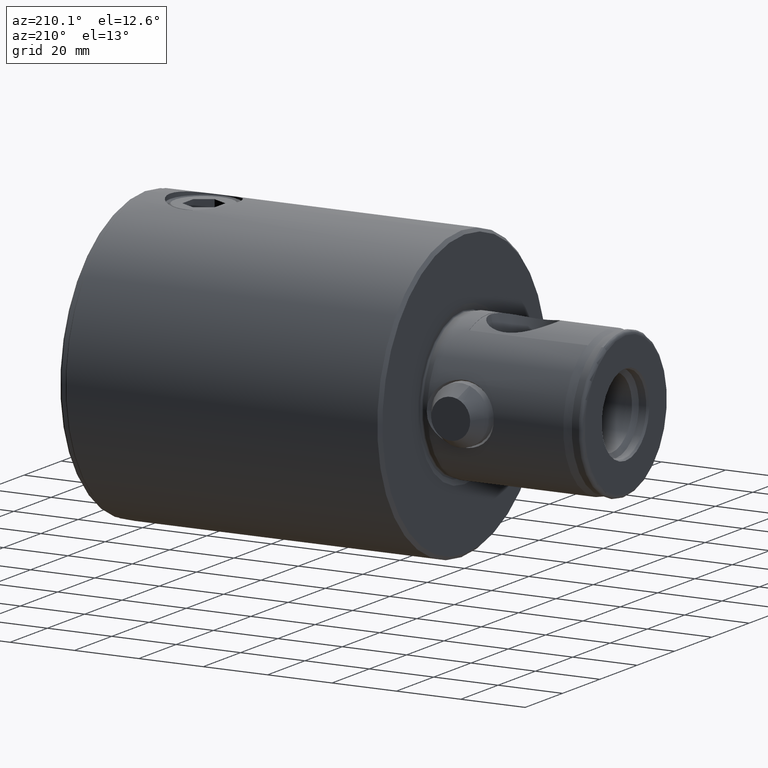
[diagram: clean part render]
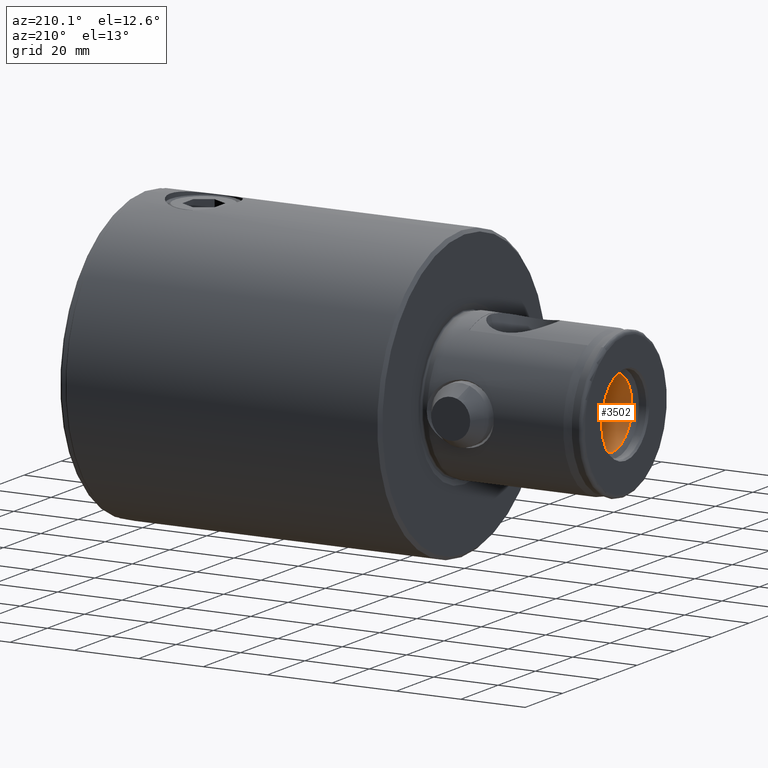
[diagram: same view with one face highlighted and labeled with its STEP entity id]
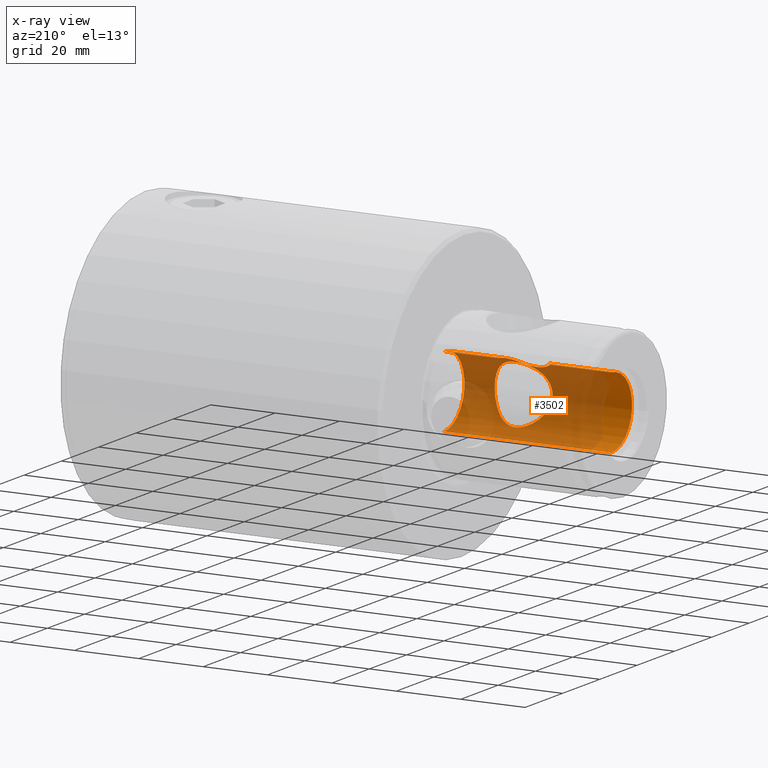
[diagram: x-ray of the same camera — body ghosted, the highlighted face saturated]
A machine part, auxiliary view. The second image highlights one B-rep face of the part: STEP entity #3502.
The next image is the same camera in x-ray: the body ghosted, the highlighted face saturated — about 80% of this face is hidden behind the body in this view.
In plain terms, the highlighted cylindrical surface (partial cylindrical patch) has radius 11 mm, axis along (-1, 0, 0).
Its self-contained STEP definition (entity closure, byte-faithful):
#48 = CARTESIAN_POINT ( 'NONE',  ( 10.99999999999997300, 0.0000000000000000000, 93.61607733787893400 ) ) ;
#51 = CARTESIAN_POINT ( 'NONE',  ( 8.046813739930089000, -7.499919242694987000, 117.9429805126656000 ) ) ;
#55 = CARTESIAN_POINT ( 'NONE',  ( -8.487188553112508400, -6.999123736676005500, 108.9911272112070000 ) ) ;
#78 = DIRECTION ( 'NONE',  ( -0.0000000000000000000, -0.0000000000000000000, -1.000000000000000000 ) ) ;
#99 = CARTESIAN_POINT ( 'NONE',  ( 8.095134576916839500, -7.448992107332300900, 119.2095732200110400 ) ) ;
#104 = CARTESIAN_POINT ( 'NONE',  ( -8.916475211212173200, -6.442023820279271900, 110.7378838012101500 ) ) ;
#136 = CARTESIAN_POINT ( 'NONE',  ( 10.99999999999997300, 2.258350999466712600E-020, 125.7000000000000000 ) ) ;
#150 = CARTESIAN_POINT ( 'NONE',  ( 9.252691689709170200, -5.957381081652567200, 122.7807830166999100 ) ) ;
#217 = CARTESIAN_POINT ( 'NONE',  ( 0.0000000000000000000, 0.0000000000000000000, 145.6500000000000100 ) ) ;
#245 = VECTOR ( 'NONE', #1565, 1000.000000000000000 ) ;
#255 = CARTESIAN_POINT ( 'NONE',  ( 5.600162497706457500, -9.482661698780781000, 104.9313478319819800 ) ) ;
#272 = CARTESIAN_POINT ( 'NONE',  ( 8.390064752318929600, -7.115900869844685900, 108.7305837311860600 ) ) ;
#288 = CARTESIAN_POINT ( 'NONE',  ( 4.648932863107681600, -9.973282493529914900, 104.2880276437495400 ) ) ;
#304 = FACE_OUTER_BOUND ( 'NONE', #1704, .T. ) ;
#362 = LINE ( 'NONE', #4123, #3632 ) ;
#377 = CARTESIAN_POINT ( 'NONE',  ( -1.558797290518071600, -10.89328043425226200, 103.1306744137476600 ) ) ;
#401 = CARTESIAN_POINT ( 'NONE',  ( -10.99999999999997300, 1.347111479062085400E-015, 93.61607733787893400 ) ) ;
#429 = CARTESIAN_POINT ( 'NONE',  ( 10.72543512827880900, -2.487139238067599800, 111.1072986310211700 ) ) ;
#434 = CARTESIAN_POINT ( 'NONE',  ( -5.371158709359508300, -9.603156210133498400, 119.2271561218936700 ) ) ;
#450 = CARTESIAN_POINT ( 'NONE',  ( 8.487097592457162800, -6.998853643785933400, 115.4935722603384800 ) ) ;
#452 = CARTESIAN_POINT ( 'NONE',  ( -0.6325626198590331700, -10.99999999999997300, 120.9999999999999700 ) ) ;
#464 = AXIS2_PLACEMENT_3D ( 'NONE', #2442, #78, #2826 ) ;
#472 = CARTESIAN_POINT ( 'NONE',  ( -7.634919328069126500, -7.921625567083414600, 116.7733397010939000 ) ) ;
#488 = CARTESIAN_POINT ( 'NONE',  ( 10.82769602149506500, -2.002008442529433100, 110.9546853991531100 ) ) ;
#506 = CARTESIAN_POINT ( 'NONE',  ( -8.170996234290360100, -7.366412863604977300, 115.7838543894761300 ) ) ;
#590 = CARTESIAN_POINT ( 'NONE',  ( 10.72579469002550700, -2.486571740869743000, 125.2932840041261200 ) ) ;
#610 = VERTEX_POINT ( 'NONE', #1419 ) ;
#643 = CARTESIAN_POINT ( 'NONE',  ( 8.502656285363293900, -6.987145633330563000, 115.0050017780012700 ) ) ;
#658 = CARTESIAN_POINT ( 'NONE',  ( 2.158354470784404500, -10.79052154116577700, 120.7428104035745500 ) ) ;
#677 = CARTESIAN_POINT ( 'NONE',  ( 8.745298510793350700, -6.673118699646433800, 109.8526819287728800 ) ) ;
#691 = CARTESIAN_POINT ( 'NONE',  ( 3.866538306001968000, -10.30212422578814300, 103.8674099895016500 ) ) ;
#709 = CARTESIAN_POINT ( 'NONE',  ( 6.815808516998424200, -8.647320082043156800, 117.9038684627307300 ) ) ;
#714 = ORIENTED_EDGE ( 'NONE', *, *, #1489, .F. ) ;
#737 = VERTEX_POINT ( 'NONE', #1722 ) ;
#753 = CARTESIAN_POINT ( 'NONE',  ( -6.035175446447046200, -9.209045926655177200, 105.3003379539045000 ) ) ;
#769 = CARTESIAN_POINT ( 'NONE',  ( -4.145580248755394800, -10.20538678765516100, 103.9893175521795700 ) ) ;
#784 = CARTESIAN_POINT ( 'NONE',  ( -4.656511902093996900, -9.980258554844084500, 104.2765595844770100 ) ) ;
#830 = CARTESIAN_POINT ( 'NONE',  ( 9.991438809306991700, -4.621618542362838900, 112.2733197623220000 ) ) ;
#852 = CARTESIAN_POINT ( 'NONE',  ( -8.984265191502665000, -6.347124465872772300, 112.6158606865917200 ) ) ;
#873 = CARTESIAN_POINT ( 'NONE',  ( -5.595619282862366500, -9.473832803886521600, 119.0546966599127800 ) ) ;
#906 = CARTESIAN_POINT ( 'NONE',  ( -8.046613348213290000, -7.502610154066996300, 116.0411594083710300 ) ) ;
#1057 = CARTESIAN_POINT ( 'NONE',  ( 8.870737950467845000, -6.505438497548500900, 113.5496663813125800 ) ) ;
#1072 = CARTESIAN_POINT ( 'NONE',  ( 6.034938416687573700, -9.209283829293330100, 118.7000318560737800 ) ) ;
#1078 = B_SPLINE_CURVE_WITH_KNOTS ( 'NONE', 3,
 ( #1589, #2726, #1554, #5071, #377, #2351, #4322, #3102, #3137, #769, #784, #5057, #753, #3957, #1981, #4729, #3492, #4275, #4376, #4359, #55, #1683, #2838, #3594, #104, #2778, #4822, #2848, #852, #3650, #4746, #4789, #2395, #506, #906, #3205, #472, #3220, #1994, #2413, #2452, #873, #434, #2820, #1231, #2471, #3252, #3578, #4046, #2795, #452, #1665 ),
 .UNSPECIFIED., .F., .F.,
 ( 4, 2, 2, 2, 2, 2, 2, 2, 2, 2, 2, 2, 2, 2, 2, 2, 2, 2, 2, 2, 2, 2, 2, 2, 2, 4 ),
 ( 0.02993448335361758400, 0.03086760006968765700, 0.03180071678575772900, 0.03273383350182779800, 0.03366695021789787400, 0.03553318365003801900, 0.03739941708217816400, 0.03833253379824821900, 0.03926565051431827500, 0.04113188394645839200, 0.04206500066252844700, 0.04299811737859850200, 0.04393123409466856400, 0.04486435081073861900, 0.04579746752680867400, 0.04673058424287873700, 0.04859681767501888800, 0.04952993439108895100, 0.05046305110715900600, 0.05232928453929912300, 0.05326240125536919900, 0.05419551797143927500, 0.05606175140357941300, 0.05699486811964949600, 0.05792798483571957900, 0.05979421826785973800 ),
 .UNSPECIFIED. ) ;
#1099 = AXIS2_PLACEMENT_3D ( 'NONE', #217, #2975, #3368 ) ;
#1106 = CARTESIAN_POINT ( 'NONE',  ( 7.789183987127820800, -7.778597808955122900, 116.5429040879635500 ) ) ;
#1129 = AXIS2_PLACEMENT_3D ( 'NONE', #3168, #4751, #2401 ) ;
#1154 = VERTEX_POINT ( 'NONE', #3525 ) ;
#1231 = CARTESIAN_POINT ( 'NONE',  ( -4.164603486004018000, -10.19784619826410900, 120.0011044579428600 ) ) ;
#1419 = CARTESIAN_POINT ( 'NONE',  ( -10.99999999999998000, 1.347111479062086200E-015, 145.6500000000000100 ) ) ;
#1437 = CARTESIAN_POINT ( 'NONE',  ( 0.6341461258338031400, -10.99999999999997700, 121.0000000000000400 ) ) ;
#1467 = CARTESIAN_POINT ( 'NONE',  ( -4.094171401043280600E-016, -10.99999999999997300, 121.0000000000000000 ) ) ;
#1469 = CARTESIAN_POINT ( 'NONE',  ( 7.156378460170064000, -8.356931348322730100, 106.5351784270764500 ) ) ;
#1489 = EDGE_CURVE ( 'NONE', #737, #4772, #4037, .T. ) ;
#1554 = CARTESIAN_POINT ( 'NONE',  ( -0.6282777162990362800, -10.98650750608601200, 103.0164759135194600 ) ) ;
#1565 = DIRECTION ( 'NONE',  ( -0.0000000000000000000, -0.0000000000000000000, 1.000000000000000000 ) ) ;
#1570 = VERTEX_POINT ( 'NONE', #1467 ) ;
#1581 = ORIENTED_EDGE ( 'NONE', *, *, #4229, .T. ) ;
#1589 = CARTESIAN_POINT ( 'NONE',  ( 1.102182127838262100E-015, -10.99999999999997300, 103.0000000000000100 ) ) ;
#1661 = CARTESIAN_POINT ( 'NONE',  ( 10.32438276632930900, -3.820383217107983700, 111.7277848718360800 ) ) ;
#1665 = CARTESIAN_POINT ( 'NONE',  ( -4.094171401043280600E-016, -10.99999999999997300, 121.0000000000000000 ) ) ;
#1681 = CARTESIAN_POINT ( 'NONE',  ( 9.251820843372685800, -5.958748970213923400, 113.6209307929911300 ) ) ;
#1683 = CARTESIAN_POINT ( 'NONE',  ( -8.664768364578922200, -6.778044836498047200, 109.5489850707481700 ) ) ;
#1704 = EDGE_LOOP ( 'NONE', ( #4715, #4100, #1581, #4591, #714, #2581 ) ) ;
#1713 = VERTEX_POINT ( 'NONE', #401 ) ;
#1722 = CARTESIAN_POINT ( 'NONE',  ( 10.99999999999997300, 1.247607041526473800E-015, 110.6999999999999900 ) ) ;
#1733 = CARTESIAN_POINT ( 'NONE',  ( 10.99999999999997700, -0.2536324307302254600, 125.7000000000000300 ) ) ;
#1749 = CARTESIAN_POINT ( 'NONE',  ( 10.92925926723023600, -1.270235374488377900, 125.5959535292141000 ) ) ;
#1828 = CARTESIAN_POINT ( 'NONE',  ( 4.897064622450284500, -9.853439346953564400, 119.5565645060793800 ) ) ;
#1865 = CARTESIAN_POINT ( 'NONE',  ( 4.894663737983719900, -9.854589799460308400, 104.4419458350476600 ) ) ;
#1866 = CARTESIAN_POINT ( 'NONE',  ( 10.99999999999997300, 0.0000000000000000000, 150.0000000000000300 ) ) ;
#1974 = CARTESIAN_POINT ( 'NONE',  ( 0.6256368532698035600, -10.99999999999997700, 103.0000000000000300 ) ) ;
#1981 = CARTESIAN_POINT ( 'NONE',  ( -6.803667941138736600, -8.646474644059395600, 106.1019358263558700 ) ) ;
#1993 = ORIENTED_EDGE ( 'NONE', *, *, #2584, .F. ) ;
#1994 = CARTESIAN_POINT ( 'NONE',  ( -6.824711795056583900, -8.640526059549541700, 117.8940542495353400 ) ) ;
#2010 = CARTESIAN_POINT ( 'NONE',  ( 8.233461912851382200, -7.294841025362894800, 116.4399587888777000 ) ) ;
#2064 = CARTESIAN_POINT ( 'NONE',  ( 8.288600583148227200, -7.232469791282887300, 116.1992436803754700 ) ) ;
#2067 = EDGE_CURVE ( 'NONE', #2891, #1713, #2836, .T. ) ;
#2118 = CARTESIAN_POINT ( 'NONE',  ( 9.812662098198828200, -4.985917808663772100, 123.8230351117493300 ) ) ;
#2215 = CARTESIAN_POINT ( 'NONE',  ( 8.983965729965829500, -6.347558765526875900, 112.6219996726446200 ) ) ;
#2229 = CARTESIAN_POINT ( 'NONE',  ( 3.323712383116511800, -10.48983275253472200, 120.3691008135260500 ) ) ;
#2265 = CARTESIAN_POINT ( 'NONE',  ( 8.684683433941085400, -6.754195805368474300, 114.4376431997305700 ) ) ;
#2270 = CYLINDRICAL_SURFACE ( 'NONE', #1129, 10.99999999999997300 ) ;
#2272 = EDGE_LOOP ( 'NONE', ( #2930, #1993 ) ) ;
#2284 = CARTESIAN_POINT ( 'NONE',  ( 3.041700594975066200, -10.57538332091755100, 120.4759553761101200 ) ) ;
#2351 = CARTESIAN_POINT ( 'NONE',  ( -2.161248485940896000, -10.78992180667717800, 103.2579298601592100 ) ) ;
#2392 = CARTESIAN_POINT ( 'NONE',  ( 10.99999999999997300, 1.247607041526473800E-015, 110.6999999999999900 ) ) ;
#2395 = CARTESIAN_POINT ( 'NONE',  ( -8.508402803082985200, -6.980254543494807800, 114.9896514423375000 ) ) ;
#2401 = DIRECTION ( 'NONE',  ( 1.000000000000000000, 0.0000000000000000000, 0.0000000000000000000 ) ) ;
#2410 = CARTESIAN_POINT ( 'NONE',  ( 8.059284233061259100, -7.486601206362239600, 117.6846411591070700 ) ) ;
#2413 = CARTESIAN_POINT ( 'NONE',  ( -6.234302870547546500, -9.065997636008789900, 118.4971231605838700 ) ) ;
#2442 = CARTESIAN_POINT ( 'NONE',  ( 0.0000000000000000000, 0.0000000000000000000, 93.61607733787893400 ) ) ;
#2452 = CARTESIAN_POINT ( 'NONE',  ( -6.026767018475924300, -9.205571272862334500, 118.6901255165456900 ) ) ;
#2469 = CARTESIAN_POINT ( 'NONE',  ( 8.046588974090639100, -7.500160393641038100, 118.7069366083859600 ) ) ;
#2471 = CARTESIAN_POINT ( 'NONE',  ( -3.338523534727336500, -10.48519231716056800, 120.3632923716506400 ) ) ;
#2510 = CARTESIAN_POINT ( 'NONE',  ( 10.82605310265865800, -2.011317569697832500, 125.4428659856033300 ) ) ;
#2581 = ORIENTED_EDGE ( 'NONE', *, *, #2887, .F. ) ;
#2584 = EDGE_CURVE ( 'NONE', #1154, #1570, #1078, .T. ) ;
#2606 = CARTESIAN_POINT ( 'NONE',  ( 8.869583190379128000, -6.507015694725145000, 110.4438139665043100 ) ) ;
#2646 = CARTESIAN_POINT ( 'NONE',  ( 4.135017486785029600, -10.19705325404731000, 119.9992487200927100 ) ) ;
#2658 = CARTESIAN_POINT ( 'NONE',  ( 1.243924189747458900, -10.94700664260421200, 103.0645318736349300 ) ) ;
#2674 = CARTESIAN_POINT ( 'NONE',  ( 5.606578286927312000, -9.479046124729244100, 119.0638457030520800 ) ) ;
#2726 = CARTESIAN_POINT ( 'NONE',  ( -0.3120372977634743300, -10.99999999999997200, 103.0000000000000300 ) ) ;
#2761 = VECTOR ( 'NONE', #3159, 1000.000000000000000 ) ;
#2778 = CARTESIAN_POINT ( 'NONE',  ( -8.982270446992789200, -6.349962103059089800, 111.3555738145537100 ) ) ;
#2791 = CARTESIAN_POINT ( 'NONE',  ( 8.277748964169877200, -7.245519948194058200, 120.2022892353465000 ) ) ;
#2795 = CARTESIAN_POINT ( 'NONE',  ( -1.269665688077410600, -10.94370470587909400, 120.9314231686418000 ) ) ;
#2820 = CARTESIAN_POINT ( 'NONE',  ( -4.669537323617416500, -9.973727562589720800, 119.7149171835320400 ) ) ;
#2826 = DIRECTION ( 'NONE',  ( -1.000000000000000000, 0.0000000000000000000, 0.0000000000000000000 ) ) ;
#2836 = CIRCLE ( 'NONE', #464, 10.99999999999997300 ) ;
#2838 = CARTESIAN_POINT ( 'NONE',  ( -8.742440795009768500, -6.676879940251859900, 109.8408272508152100 ) ) ;
#2848 = CARTESIAN_POINT ( 'NONE',  ( -9.000373582132771900, -6.324023704823259700, 112.3041371664549400 ) ) ;
#2862 = CARTESIAN_POINT ( 'NONE',  ( 10.95586836149742800, -1.016893453839889500, 125.6351472979984300 ) ) ;
#2887 = EDGE_CURVE ( 'NONE', #2891, #737, #3567, .T. ) ;
#2891 = VERTEX_POINT ( 'NONE', #48 ) ;
#2910 = EDGE_CURVE ( 'NONE', #4772, #3608, #3260, .T. ) ;
#2930 = ORIENTED_EDGE ( 'NONE', *, *, #4285, .F. ) ;
#2939 = CARTESIAN_POINT ( 'NONE',  ( 8.637405163162863900, -6.812498766242353700, 121.3463245104051400 ) ) ;
#2975 = DIRECTION ( 'NONE',  ( -0.0000000000000000000, -0.0000000000000000000, 1.000000000000000000 ) ) ;
#2990 = CARTESIAN_POINT ( 'NONE',  ( 8.055369948876885300, -7.498425367710844100, 116.0541601571164000 ) ) ;
#3029 = CARTESIAN_POINT ( 'NONE',  ( 8.918322919236093300, -6.439461224631829200, 110.7505248292461600 ) ) ;
#3042 = CARTESIAN_POINT ( 'NONE',  ( 4.133725256407245800, -10.19761030663428900, 104.0000368817228600 ) ) ;
#3102 = CARTESIAN_POINT ( 'NONE',  ( -3.039103413566627100, -10.57611112445087200, 103.5231376536190700 ) ) ;
#3137 = CARTESIAN_POINT ( 'NONE',  ( -3.324225172581200600, -10.48968377850859600, 103.6310846448509400 ) ) ;
#3159 = DIRECTION ( 'NONE',  ( -0.0000000000000000000, -0.0000000000000000000, 1.000000000000000000 ) ) ;
#3168 = CARTESIAN_POINT ( 'NONE',  ( 0.0000000000000000000, 0.0000000000000000000, 150.0000000000000300 ) ) ;
#3179 = EDGE_CURVE ( 'NONE', #1713, #610, #362, .T. ) ;
#3180 = CARTESIAN_POINT ( 'NONE',  ( 10.99999999999997700, -0.5144225921681095900, 110.6999999999999700 ) ) ;
#3205 = CARTESIAN_POINT ( 'NONE',  ( -7.778847738548443600, -7.779889032629784900, 116.5352490119055100 ) ) ;
#3220 = CARTESIAN_POINT ( 'NONE',  ( -7.172808172592104000, -8.350293528012667100, 117.4642367364387600 ) ) ;
#3224 = CARTESIAN_POINT ( 'NONE',  ( 10.99999999999998000, 0.0000000000000000000, 145.6500000000000100 ) ) ;
#3231 = CARTESIAN_POINT ( 'NONE',  ( 10.47424753548585000, -3.392780400471161700, 111.4931888759837600 ) ) ;
#3252 = CARTESIAN_POINT ( 'NONE',  ( -3.052834631327745500, -10.57213072701947400, 120.4718967746238700 ) ) ;
#3260 = LINE ( 'NONE', #3953, #245 ) ;
#3280 = CARTESIAN_POINT ( 'NONE',  ( 8.720367347221174000, -6.706390959913524500, 121.5663076624468700 ) ) ;
#3368 = DIRECTION ( 'NONE',  ( 1.000000000000000000, 0.0000000000000000000, 0.0000000000000000000 ) ) ;
#3387 = CARTESIAN_POINT ( 'NONE',  ( 8.983512482107816100, -6.348200377990742100, 111.3721661223578000 ) ) ;
#3402 = CARTESIAN_POINT ( 'NONE',  ( 7.170539389456598300, -8.352325180634510500, 117.4674244029539200 ) ) ;
#3418 = CARTESIAN_POINT ( 'NONE',  ( 7.785031698712621100, -7.782722394620649600, 107.4501245440710600 ) ) ;
#3439 = CARTESIAN_POINT ( 'NONE',  ( 2.466009866889654400, -10.73792797328527400, 103.3219395390716800 ) ) ;
#3445 = FACE_BOUND ( 'NONE', #2272, .T. ) ;
#3455 = CARTESIAN_POINT ( 'NONE',  ( 3.045318483456934500, -10.58591344550498200, 103.5098533383180500 ) ) ;
#3492 = CARTESIAN_POINT ( 'NONE',  ( -7.320733284099534700, -8.212901148445658000, 106.7574077136764700 ) ) ;
#3497 = B_SPLINE_CURVE_WITH_KNOTS ( 'NONE', 3,
 ( #4582, #1437, #4604, #658, #3805, #2284, #2229, #4624, #2646, #5035, #1828, #2674, #1072, #709, #3402, #1106, #2990, #643, #2265, #1057, #4997, #2215, #4982, #4966, #3387, #3029, #2606, #677, #4187, #3837, #272, #4220, #3418, #3824, #1469, #3783, #4202, #5016, #255, #1865, #288, #3042, #691, #3455, #3439, #2658, #1974, #5064 ),
 .UNSPECIFIED., .F., .F.,
 ( 4, 2, 2, 2, 2, 2, 2, 2, 2, 2, 2, 2, 2, 2, 2, 2, 2, 2, 2, 2, 2, 2, 2, 4 ),
 ( 3.959573347578945000E-019, 0.001870905209601062800, 0.002806357814401598500, 0.003741810419202133900, 0.004677263024002668900, 0.005612715628803203800, 0.007483620838404276400, 0.009354526048005348100, 0.01122543125760642200, 0.01309633646720749300, 0.01403178907200805000, 0.01496724167680860700, 0.01590269428160916200, 0.01683814688640972200, 0.01777359949121027800, 0.01870905209601083800, 0.02057995730561198000, 0.02151540991041255000, 0.02245086251521312100, 0.02432176772481423100, 0.02525722032961479400, 0.02619267293441536100, 0.02806357814401647100, 0.02993448335361758400 ),
 .UNSPECIFIED. ) ;
#3502 = ADVANCED_FACE ( 'NONE', ( #3445, #304 ), #2270, .F. ) ;
#3525 = CARTESIAN_POINT ( 'NONE',  ( 1.102182127838262100E-015, -10.99999999999997300, 103.0000000000000100 ) ) ;
#3567 = LINE ( 'NONE', #1866, #2761 ) ;
#3578 = CARTESIAN_POINT ( 'NONE',  ( -2.472884284017971900, -10.72262051521362900, 120.6589651554890100 ) ) ;
#3594 = CARTESIAN_POINT ( 'NONE',  ( -8.868144830088358100, -6.508994089977793600, 110.4352938654014900 ) ) ;
#3608 = VERTEX_POINT ( 'NONE', #3224 ) ;
#3612 = CARTESIAN_POINT ( 'NONE',  ( 10.96412460493953800, -1.017354699806589200, 110.7523419195034400 ) ) ;
#3632 = VECTOR ( 'NONE', #4104, 1000.000000000000000 ) ;
#3633 = CARTESIAN_POINT ( 'NONE',  ( 9.812154169437736300, -4.986695666067353400, 112.5779671595851400 ) ) ;
#3650 = CARTESIAN_POINT ( 'NONE',  ( -8.920505933185076200, -6.436426330856041200, 113.2332393573615100 ) ) ;
#3662 = CARTESIAN_POINT ( 'NONE',  ( 10.99123882997852100, -0.5077330334882489400, 125.6871686775510300 ) ) ;
#3735 = CARTESIAN_POINT ( 'NONE',  ( 8.980813362756070000, -6.353791353007502500, 122.1919075693178500 ) ) ;
#3783 = CARTESIAN_POINT ( 'NONE',  ( 6.803706117386007600, -8.646481208792934600, 106.1018977155934800 ) ) ;
#3805 = CARTESIAN_POINT ( 'NONE',  ( 2.458580940879741700, -10.72595238899351200, 120.6630907766468700 ) ) ;
#3824 = CARTESIAN_POINT ( 'NONE',  ( 7.321474435292882900, -8.212209428574922800, 106.7585275544978000 ) ) ;
#3837 = CARTESIAN_POINT ( 'NONE',  ( 8.492191304451786500, -6.993050808039226000, 109.0051610397793200 ) ) ;
#3869 = CIRCLE ( 'NONE', #1099, 10.99999999999998000 ) ;
#3953 = CARTESIAN_POINT ( 'NONE',  ( 10.99999999999997300, 0.0000000000000000000, 150.0000000000000300 ) ) ;
#3957 = CARTESIAN_POINT ( 'NONE',  ( -6.618948083865356000, -8.789026888697922100, 105.8953517862683100 ) ) ;
#3991 = CARTESIAN_POINT ( 'NONE',  ( 8.888897574489742900, -6.487709774498332700, 114.4073510610022500 ) ) ;
#4022 = CARTESIAN_POINT ( 'NONE',  ( 9.443150735455805700, -5.654414850207739800, 113.2500525632661500 ) ) ;
#4037 = B_SPLINE_CURVE_WITH_KNOTS ( 'NONE', 3,
 ( #2392, #3180, #3612, #488, #429, #3231, #1661, #830, #3633, #4022, #1681, #3991, #4417, #450, #4356, #2064, #2010, #4762, #4821, #2410, #51, #2469, #99, #2791, #4461, #2939, #3280, #4064, #3735, #150, #4445, #2118, #4484, #4871, #4088, #590, #2510, #1749, #2862, #3662, #1733, #136 ),
 .UNSPECIFIED., .F., .F.,
 ( 4, 2, 2, 2, 2, 2, 2, 2, 2, 2, 2, 2, 2, 2, 2, 2, 2, 2, 2, 2, 4 ),
 ( 1.207995757528193000E-018, 0.001518570937570093500, 0.003037141875140185700, 0.004555712812710277500, 0.006074283750280370600, 0.007592854687850463700, 0.009111425625420558500, 0.009870711094205586800, 0.01062999656299061500, 0.01138928203177564300, 0.01214856750056067200, 0.01366713843813077200, 0.01518570937570086800, 0.01594499484448589800, 0.01670428031327092800, 0.01822285125084098500, 0.01974142218841104500, 0.02125999312598110500, 0.02277856406355119700, 0.02353784953233623700, 0.02429713500112127400 ),
 .UNSPECIFIED. ) ;
#4046 = CARTESIAN_POINT ( 'NONE',  ( -2.176867203853499100, -10.78681742169705000, 120.7382402044688000 ) ) ;
#4064 = CARTESIAN_POINT ( 'NONE',  ( 8.891910881398180400, -6.477222186629363800, 121.9885748944021900 ) ) ;
#4088 = CARTESIAN_POINT ( 'NONE',  ( 10.47146360326642900, -3.402081827431223000, 124.9025037280963100 ) ) ;
#4100 = ORIENTED_EDGE ( 'NONE', *, *, #3179, .T. ) ;
#4104 = DIRECTION ( 'NONE',  ( -0.0000000000000000000, -0.0000000000000000000, 1.000000000000000000 ) ) ;
#4123 = CARTESIAN_POINT ( 'NONE',  ( -10.99999999999997300, 1.347111479062085400E-015, 150.0000000000000300 ) ) ;
#4187 = CARTESIAN_POINT ( 'NONE',  ( 8.669483237555336800, -6.772011012171473600, 109.5655731798205500 ) ) ;
#4202 = CARTESIAN_POINT ( 'NONE',  ( 6.616265616746380500, -8.791088667674094000, 105.8923670116863900 ) ) ;
#4220 = CARTESIAN_POINT ( 'NONE',  ( 8.052258453488981600, -7.501870483316839300, 107.9391859257319200 ) ) ;
#4229 = EDGE_CURVE ( 'NONE', #610, #3608, #3869, .T. ) ;
#4275 = CARTESIAN_POINT ( 'NONE',  ( -7.786936747047819900, -7.780947272776580300, 107.4529949540777100 ) ) ;
#4285 = EDGE_CURVE ( 'NONE', #1570, #1154, #3497, .T. ) ;
#4322 = CARTESIAN_POINT ( 'NONE',  ( -2.457239784644560400, -10.72624112706058100, 103.3365527970326700 ) ) ;
#4356 = CARTESIAN_POINT ( 'NONE',  ( 8.415583788599427400, -7.084311427785145600, 115.7252925978027900 ) ) ;
#4359 = CARTESIAN_POINT ( 'NONE',  ( -8.386785365895395500, -7.119718035385521800, 108.7224963572319800 ) ) ;
#4376 = CARTESIAN_POINT ( 'NONE',  ( -8.052814610751619600, -7.501092690590545500, 107.9413090222728300 ) ) ;
#4417 = CARTESIAN_POINT ( 'NONE',  ( 8.715999250033856800, -6.714943674932964500, 114.8244489055776300 ) ) ;
#4445 = CARTESIAN_POINT ( 'NONE',  ( 9.440746065657919000, -5.658624176594778500, 123.1454901365560900 ) ) ;
#4461 = CARTESIAN_POINT ( 'NONE',  ( 8.407392606135694300, -7.097561492304311800, 120.6723693741584100 ) ) ;
#4484 = CARTESIAN_POINT ( 'NONE',  ( 9.992571845321359400, -4.618626012259744200, 124.1284917770639300 ) ) ;
#4582 = CARTESIAN_POINT ( 'NONE',  ( -4.094171401043280600E-016, -10.99999999999997300, 121.0000000000000000 ) ) ;
#4591 = ORIENTED_EDGE ( 'NONE', *, *, #2910, .F. ) ;
#4604 = CARTESIAN_POINT ( 'NONE',  ( 1.252492474430360900, -10.94562283331414100, 120.9337659303970700 ) ) ;
#4624 = CARTESIAN_POINT ( 'NONE',  ( 3.870374258246196900, -10.30067271021351300, 120.1307512281307600 ) ) ;
#4715 = ORIENTED_EDGE ( 'NONE', *, *, #2067, .T. ) ;
#4729 = CARTESIAN_POINT ( 'NONE',  ( -7.154226464080280400, -8.358735844868793000, 106.5324500779273500 ) ) ;
#4746 = CARTESIAN_POINT ( 'NONE',  ( -8.872221763378140800, -6.503417827060280500, 113.5414587463018300 ) ) ;
#4751 = DIRECTION ( 'NONE',  ( -0.0000000000000000000, -0.0000000000000000000, 1.000000000000000000 ) ) ;
#4762 = CARTESIAN_POINT ( 'NONE',  ( 8.142876443324068300, -7.395820703914460600, 116.9294541465509400 ) ) ;
#4772 = VERTEX_POINT ( 'NONE', #4991 ) ;
#4789 = CARTESIAN_POINT ( 'NONE',  ( -8.685867500144041700, -6.752685064290227000, 114.4342066696125600 ) ) ;
#4821 = CARTESIAN_POINT ( 'NONE',  ( 8.107433174029823800, -7.434432547344494300, 117.1782343434153300 ) ) ;
#4822 = CARTESIAN_POINT ( 'NONE',  ( -8.999613310878146400, -6.325105587402073400, 111.6741406919579600 ) ) ;
#4871 = CARTESIAN_POINT ( 'NONE',  ( 10.32124313493431200, -3.828203034662984300, 124.6671154711536200 ) ) ;
#4966 = CARTESIAN_POINT ( 'NONE',  ( 8.999853609839933100, -6.324763637118357100, 111.6836470040523700 ) ) ;
#4982 = CARTESIAN_POINT ( 'NONE',  ( 9.000144437183882600, -6.324349782688448900, 112.3079680607171700 ) ) ;
#4991 = CARTESIAN_POINT ( 'NONE',  ( 10.99999999999997300, 2.258350999466712600E-020, 125.7000000000000000 ) ) ;
#4997 = CARTESIAN_POINT ( 'NONE',  ( 8.918803943532307000, -6.438794820139096800, 113.2463787734083800 ) ) ;
#5016 = CARTESIAN_POINT ( 'NONE',  ( 6.028540551388072500, -9.213552057554364800, 105.2940843618953300 ) ) ;
#5035 = CARTESIAN_POINT ( 'NONE',  ( 4.648011003070597400, -9.973678278209570500, 119.7124797190824000 ) ) ;
#5057 = CARTESIAN_POINT ( 'NONE',  ( -5.606961130670908000, -9.478958318034070600, 104.9362459113002800 ) ) ;
#5064 = CARTESIAN_POINT ( 'NONE',  ( 1.102182127838262100E-015, -10.99999999999997300, 103.0000000000000100 ) ) ;
#5071 = CARTESIAN_POINT ( 'NONE',  ( -1.252339802328623400, -10.93296506395157900, 103.0820359430710100 ) ) ;